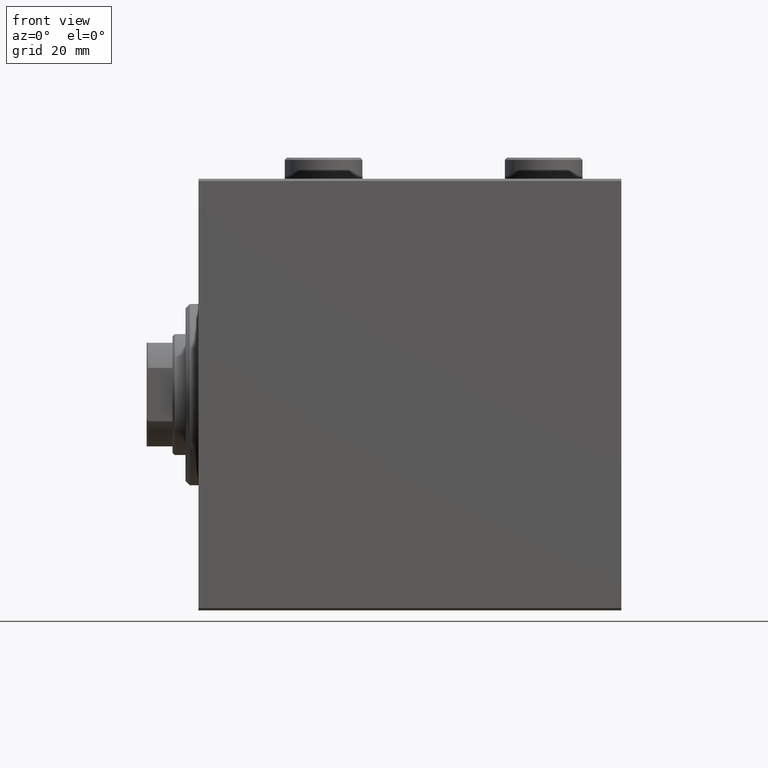
[diagram: clean part render]
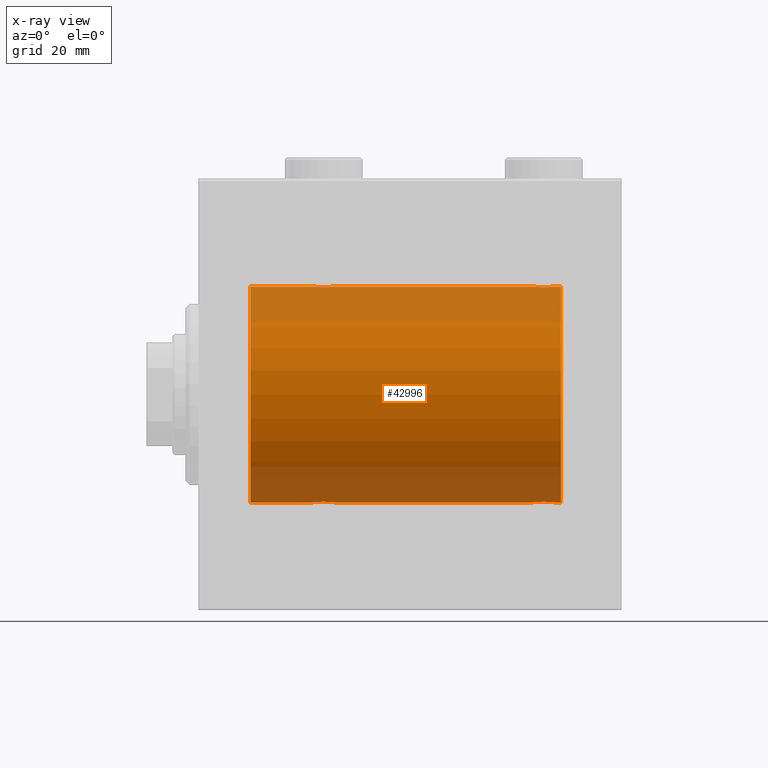
[diagram: x-ray — body ghosted, one internal face saturated and labeled with its STEP entity id]
A machine part, front view, then the same camera in x-ray: the body is ghosted and one INTERNAL B-rep face — a face not visible from any outside direction — is saturated and labeled: STEP entity #42996.
In plain terms, the highlighted cylindrical surface (partial cylindrical patch) has radius 25 mm, axis along (-1, -0, -0).
Its self-contained STEP definition (entity closure, byte-faithful):
#449 = CARTESIAN_POINT ( 'NONE',  ( 77.56650644760256341, -0.6588655613945877398, -24.99312727339970408 ) ) ;
#622 = VECTOR ( 'NONE', #7083, 1000.000000000000000 ) ;
#842 = CARTESIAN_POINT ( 'NONE',  ( 26.57985090779070703, -0.6480119923854241737, 24.99212088949390420 ) ) ;
#1067 = CARTESIAN_POINT ( 'NONE',  ( 28.19211657594193809, -2.371528299825754083, 24.88734287464370709 ) ) ;
#1151 = VERTEX_POINT ( 'NONE', #25082 ) ;
#1298 = CARTESIAN_POINT ( 'NONE',  ( 80.16323589638544433, -2.500125740978196731, 24.87467329022545925 ) ) ;
#1452 = CARTESIAN_POINT ( 'NONE',  ( 31.50000000000000000, -2.695968940278339017E-15, 25.00000000000000000 ) ) ;
#1463 = DIRECTION ( 'NONE',  ( 0.000000000000000000, 0.000000000000000000, 1.000000000000000000 ) ) ;
#1526 = CARTESIAN_POINT ( 'NONE',  ( 78.01250184165604651, -1.525407911884365530, 24.95379469572362297 ) ) ;
#1588 = EDGE_LOOP ( 'NONE', ( #8360, #44702, #42185, #10391, #12978, #42127, #16346, #38599, #25651, #20597, #21940, #6602 ) ) ;
#1703 = CARTESIAN_POINT ( 'NONE',  ( 30.98749815834399257, -1.525407911884362644, -24.95379469572362652 ) ) ;
#1937 = CARTESIAN_POINT ( 'NONE',  ( 26.75393620905934000, -1.109818057797415936, -24.97580694515542987 ) ) ;
#2115 = CARTESIAN_POINT ( 'NONE',  ( 78.11814045851357946, -1.653834020452939146, -24.94550385189584318 ) ) ;
#2122 = AXIS2_PLACEMENT_3D ( 'NONE', #17942, #17719, #38531 ) ;
#2168 = CARTESIAN_POINT ( 'NONE',  ( 27.89276154161589716, -2.247417070759893498, -24.89885693081946272 ) ) ;
#2264 = EDGE_CURVE ( 'NONE', #8431, #44695, #3102, .T. ) ;
#2453 = EDGE_CURVE ( 'NONE', #10804, #15752, #43157, .T. ) ;
#2617 = CARTESIAN_POINT ( 'NONE',  ( 29.32947680114269318, -2.483544361357266972, -24.87635491893501793 ) ) ;
#2791 = CARTESIAN_POINT ( 'NONE',  ( 79.19564339083697746, -2.372734907014171224, -24.88722742718433523 ) ) ;
#3010 = CARTESIAN_POINT ( 'NONE',  ( 81.25383195424505800, -2.169003991399860443, -24.90589728951139037 ) ) ;
#3102 = LINE ( 'NONE', #13051, #31348 ) ;
#3637 = CARTESIAN_POINT ( 'NONE',  ( 26.50000000000000355, -1.940558383798427991E-23, 25.00000000000000000 ) ) ;
#3649 = LINE ( 'NONE', #14710, #26672 ) ;
#4072 = AXIS2_PLACEMENT_3D ( 'NONE', #43984, #19033, #1463 ) ;
#4311 = CARTESIAN_POINT ( 'NONE',  ( 30.10723845838410284, -2.247417070759902380, 24.89885693081946272 ) ) ;
#4537 = CARTESIAN_POINT ( 'NONE',  ( 27.34616663850662377, -1.881857718844722971, 24.92933960374833902 ) ) ;
#4756 = CARTESIAN_POINT ( 'NONE',  ( 79.67052319885733880, -2.483544361357273189, 24.87635491893502149 ) ) ;
#4870 = EDGE_CURVE ( 'NONE', #11720, #44695, #30045, .T. ) ;
#5449 = CARTESIAN_POINT ( 'NONE',  ( 77.62784030591393503, -0.8058335233485520721, 24.98746277938383287 ) ) ;
#5635 = CARTESIAN_POINT ( 'NONE',  ( 27.01461966282905891, -1.528152964861308138, -24.95362559291378801 ) ) ;
#6027 = CARTESIAN_POINT ( 'NONE',  ( 80.16706495178063108, -2.499872792855076575, -24.87469871246082675 ) ) ;
#6307 = CARTESIAN_POINT ( 'NONE',  ( 28.35439333851369526, -2.420689345803757053, -24.88254961038873958 ) ) ;
#6580 = CARTESIAN_POINT ( 'NONE',  ( 81.25084023924057419, -2.170728182476720836, 24.90574631553725027 ) ) ;
#6602 = ORIENTED_EDGE ( 'NONE', *, *, #20023, .F. ) ;
#7031 = DIRECTION ( 'NONE',  ( -1.000000000000000000, -0.000000000000000000, -0.000000000000000000 ) ) ;
#7083 = DIRECTION ( 'NONE',  ( -1.000000000000000000, -0.000000000000000000, -0.000000000000000000 ) ) ;
#7323 = DIRECTION ( 'NONE',  ( -1.000000000000000000, -0.000000000000000000, -0.000000000000000000 ) ) ;
#7373 = DIRECTION ( 'NONE',  ( -1.000000000000000000, -0.000000000000000000, -0.000000000000000000 ) ) ;
#7635 = B_SPLINE_CURVE_WITH_KNOTS ( 'NONE', 3,
 ( #27290, #30980, #41840, #41389, #41609, #37476, #24044, #10158, #34451, #44625, #34675, #3010, #38147, #12961, #17108, #23600, #6027, #9707, #23818, #37919, #2791, #31199, #45075, #24273, #38375, #2115, #21472, #10604, #14077, #449, #17786, #31660 ),
 .UNSPECIFIED., .F., .F.,
 ( 4, 2, 2, 2, 2, 2, 2, 2, 2, 2, 2, 2, 2, 2, 2, 4 ),
 ( 0.007821024441662298085, 0.008309723826317902753, 0.008798423210973509156, 0.009287122595629113825, 0.009775821980284718493, 0.01026452136494032490, 0.01075322074959592956, 0.01124192013425153597, 0.01173061951890714064, 0.01221931890356274530, 0.01270801828821835171, 0.01319671767287395811, 0.01368541705752956104, 0.01417411644218516745, 0.01466281582684077212, 0.01564021459615199880 ),
 .UNSPECIFIED. ) ;
#7917 = EDGE_CURVE ( 'NONE', #21861, #1151, #21133, .T. ) ;
#7929 = CARTESIAN_POINT ( 'NONE',  ( 31.17011290280923674, -1.252049606094335132, -24.96900299967627035 ) ) ;
#8138 = CARTESIAN_POINT ( 'NONE',  ( 26.50000000000000355, -3.314090237927254693E-15, -25.00000000000000000 ) ) ;
#8213 = CARTESIAN_POINT ( 'NONE',  ( 79.35095609830904095, -2.419770561643911133, 24.88263927071751169 ) ) ;
#8218 = CARTESIAN_POINT ( 'NONE',  ( 31.16827641493956591, -1.255214705003184106, 24.96884293994578385 ) ) ;
#8360 = ORIENTED_EDGE ( 'NONE', *, *, #2453, .F. ) ;
#8431 = VERTEX_POINT ( 'NONE', #16608 ) ;
#8444 = CARTESIAN_POINT ( 'NONE',  ( 77.50000000000004263, -0.1631750940176218967, 25.00000000000000355 ) ) ;
#9322 = CARTESIAN_POINT ( 'NONE',  ( 26.50000000000001066, -0.3305063766663772773, -25.00000000000000711 ) ) ;
#9707 = CARTESIAN_POINT ( 'NONE',  ( 79.83676410361458409, -2.500125740978189182, -24.87467329022545215 ) ) ;
#10036 = CARTESIAN_POINT ( 'NONE',  ( 81.65121133559114242, -1.884161199660613351, 24.92916496727982434 ) ) ;
#10101 = CARTESIAN_POINT ( 'NONE',  ( 84.00000000000000000, 3.061616997868382254E-15, -25.00000000000000000 ) ) ;
#10158 = CARTESIAN_POINT ( 'NONE',  ( 81.98749815834398191, -1.525407911884367529, -24.95379469572361586 ) ) ;
#10391 = ORIENTED_EDGE ( 'NONE', *, *, #42990, .T. ) ;
#10604 = CARTESIAN_POINT ( 'NONE',  ( 77.83172358506043054, -1.255214705003180109, -24.96884293994577675 ) ) ;
#10717 = VECTOR ( 'NONE', #7031, 1000.000000000000000 ) ;
#10774 = CARTESIAN_POINT ( 'NONE',  ( 27.88963203491136156, -2.245863995402906266, 24.89899750494197050 ) ) ;
#10804 = VERTEX_POINT ( 'NONE', #10101 ) ;
#11274 = EDGE_CURVE ( 'NONE', #11720, #27269, #28864, .T. ) ;
#11392 = CARTESIAN_POINT ( 'NONE',  ( 31.42014909220929653, -0.6480119923854192887, -24.99212088949391131 ) ) ;
#11685 = CARTESIAN_POINT ( 'NONE',  ( 77.82988709719073483, -1.252049606094335799, 24.96900299967626680 ) ) ;
#11690 = CARTESIAN_POINT ( 'NONE',  ( 28.83293504821940090, -2.499872792855088122, 24.87469871246082320 ) ) ;
#11720 = VERTEX_POINT ( 'NONE', #41787 ) ;
#12010 = CIRCLE ( 'NONE', #26770, 25.00000000000000000 ) ;
#12258 = B_SPLINE_CURVE_WITH_KNOTS ( 'NONE', 3,
 ( #26200, #43062, #32669, #11392, #39608, #40305, #7929, #1703, #18813, #32916, #31034, #26667, #27342, #37301, #33602, #2617, #37977, #16259, #45129, #6307, #37069, #2168, #41223, #13462, #12782, #37527, #5635, #16029, #1937, #20410, #9322, #19736 ),
 .UNSPECIFIED., .F., .F.,
 ( 4, 2, 2, 2, 2, 2, 2, 2, 2, 2, 2, 2, 2, 2, 2, 4 ),
 ( 0.007821024441662303289, 0.008309723826317913162, 0.008798423210973523034, 0.009287122595629127703, 0.009775821980284732371, 0.01026452136494033877, 0.01075322074959594518, 0.01124192013425154985, 0.01173061951890715451, 0.01221931890356276092, 0.01270801828821836559, 0.01319671767287397025, 0.01368541705752957666, 0.01417411644218518132, 0.01466281582684078599, 0.01564021459615200227 ),
 .UNSPECIFIED. ) ;
#12606 = CARTESIAN_POINT ( 'NONE',  ( 78.74616804575498463, -2.169003991399877762, 24.90589728951138682 ) ) ;
#12782 = CARTESIAN_POINT ( 'NONE',  ( 27.34878866440887535, -1.884161199660613351, -24.92916496727982079 ) ) ;
#12830 = CARTESIAN_POINT ( 'NONE',  ( 80.80435660916305096, -2.372734907014176553, 24.88722742718433523 ) ) ;
#12961 = CARTESIAN_POINT ( 'NONE',  ( 80.80788342405803348, -2.371528299825742092, -24.88734287464371064 ) ) ;
#12978 = ORIENTED_EDGE ( 'NONE', *, *, #34564, .T. ) ;
#13051 = CARTESIAN_POINT ( 'NONE',  ( 84.00000000000000000, 0.000000000000000000, 25.00000000000000000 ) ) ;
#13451 = DIRECTION ( 'NONE',  ( 0.000000000000000000, 0.000000000000000000, 1.000000000000000000 ) ) ;
#13462 = CARTESIAN_POINT ( 'NONE',  ( 27.47743225659811017, -1.989585286700241928, -24.92087098724766037 ) ) ;
#13504 = CARTESIAN_POINT ( 'NONE',  ( 82.24606379094068132, -1.109818057797411051, 24.97580694515542277 ) ) ;
#14077 = CARTESIAN_POINT ( 'NONE',  ( 77.75393620905936132, -1.109818057797414381, -24.97580694515541921 ) ) ;
#14293 = EDGE_CURVE ( 'NONE', #10804, #43243, #30971, .T. ) ;
#14469 = CARTESIAN_POINT ( 'NONE',  ( 27.11587617213528745, -1.651251241585107055, 24.94567559498349141 ) ) ;
#14696 = CARTESIAN_POINT ( 'NONE',  ( 27.01250184165601809, -1.525407911884372192, 24.95379469572361941 ) ) ;
#14710 = CARTESIAN_POINT ( 'NONE',  ( 84.00000000000000000, 0.000000000000000000, 25.00000000000000000 ) ) ;
#14919 = CARTESIAN_POINT ( 'NONE',  ( 29.80435660916301899, -2.372734907014179662, 24.88722742718433878 ) ) ;
#15752 = VERTEX_POINT ( 'NONE', #16539 ) ;
#16029 = CARTESIAN_POINT ( 'NONE',  ( 26.83172358506043764, -1.255214705003178555, -24.96884293994578741 ) ) ;
#16259 = CARTESIAN_POINT ( 'NONE',  ( 28.83676410361456632, -2.500125740978190958, -24.87467329022545215 ) ) ;
#16346 = ORIENTED_EDGE ( 'NONE', *, *, #18318, .T. ) ;
#16539 = CARTESIAN_POINT ( 'NONE',  ( 84.00000000000000000, 0.000000000000000000, 25.00000000000000000 ) ) ;
#16608 = CARTESIAN_POINT ( 'NONE',  ( 77.50000000000001421, -1.940203396391078535E-23, 25.00000000000000000 ) ) ;
#16763 = CARTESIAN_POINT ( 'NONE',  ( 82.50000000000005684, -0.3305063766663757230, 25.00000000000000711 ) ) ;
#17108 = CARTESIAN_POINT ( 'NONE',  ( 80.64904390169097326, -2.419770561643902695, -24.88263927071750814 ) ) ;
#17719 = DIRECTION ( 'NONE',  ( -1.000000000000000000, -0.000000000000000000, -0.000000000000000000 ) ) ;
#17786 = CARTESIAN_POINT ( 'NONE',  ( 77.50000000000001421, -0.3305063766663793867, -25.00000000000000711 ) ) ;
#17905 = EDGE_CURVE ( 'NONE', #8431, #38228, #32548, .T. ) ;
#17942 = CARTESIAN_POINT ( 'NONE',  ( 84.00000000000000000, 0.000000000000000000, 0.000000000000000000 ) ) ;
#18318 = EDGE_CURVE ( 'NONE', #1151, #27269, #12010, .T. ) ;
#18634 = CARTESIAN_POINT ( 'NONE',  ( 26.51582159942343608, -0.3254210271412232292, 24.99840249400844883 ) ) ;
#18693 = EDGE_CURVE ( 'NONE', #43243, #40763, #7635, .T. ) ;
#18813 = CARTESIAN_POINT ( 'NONE',  ( 30.88412382786470900, -1.651251241585097951, -24.94567559498349141 ) ) ;
#18865 = CARTESIAN_POINT ( 'NONE',  ( 79.83293504821945419, -2.499872792855085013, 24.87469871246082675 ) ) ;
#19033 = DIRECTION ( 'NONE',  ( -1.000000000000000000, 0.000000000000000000, 0.000000000000000000 ) ) ;
#19736 = CARTESIAN_POINT ( 'NONE',  ( 26.50000000000000355, -3.314090237927254693E-15, -25.00000000000000000 ) ) ;
#20023 = EDGE_CURVE ( 'NONE', #15752, #38228, #3649, .T. ) ;
#20410 = CARTESIAN_POINT ( 'NONE',  ( 26.56650644760253499, -0.6588655613945881839, -24.99312727339971119 ) ) ;
#20448 = DIRECTION ( 'NONE',  ( -1.000000000000000000, -0.000000000000000000, -0.000000000000000000 ) ) ;
#20597 = ORIENTED_EDGE ( 'NONE', *, *, #2264, .F. ) ;
#21133 = LINE ( 'NONE', #41723, #10717 ) ;
#21472 = CARTESIAN_POINT ( 'NONE',  ( 78.01461966282909088, -1.528152964861308138, -24.95362559291378091 ) ) ;
#21630 = CARTESIAN_POINT ( 'NONE',  ( 28.35095609830903740, -2.419770561643915130, 24.88263927071751169 ) ) ;
#21861 = VERTEX_POINT ( 'NONE', #8138 ) ;
#21867 = CARTESIAN_POINT ( 'NONE',  ( 29.64560666148631896, -2.420689345803764159, 24.88254961038873958 ) ) ;
#21940 = ORIENTED_EDGE ( 'NONE', *, *, #17905, .T. ) ;
#23016 = CARTESIAN_POINT ( 'NONE',  ( 77.51582159942344674, -0.3254210271412246169, 24.99840249400844883 ) ) ;
#23478 = CARTESIAN_POINT ( 'NONE',  ( 81.98538033717099438, -1.528152964861309915, 24.95362559291379156 ) ) ;
#23600 = CARTESIAN_POINT ( 'NONE',  ( 80.32947680114270383, -2.483544361357264751, -24.87635491893501438 ) ) ;
#23659 = VERTEX_POINT ( 'NONE', #45575 ) ;
#23697 = CARTESIAN_POINT ( 'NONE',  ( 81.88185954148649159, -1.653834020452933817, 24.94550385189585029 ) ) ;
#23818 = CARTESIAN_POINT ( 'NONE',  ( 79.67403429960539540, -2.484007091859756766, -24.87630842367762796 ) ) ;
#23970 = CARTESIAN_POINT ( 'NONE',  ( 84.00000000000000000, 3.061616997868382254E-15, -25.00000000000000000 ) ) ;
#24044 = CARTESIAN_POINT ( 'NONE',  ( 82.17011290280929359, -1.252049606094341572, -24.96900299967627745 ) ) ;
#24149 = CARTESIAN_POINT ( 'NONE',  ( 82.50000000000001421, 2.858952873890094713E-15, 25.00000000000000000 ) ) ;
#24273 = CARTESIAN_POINT ( 'NONE',  ( 78.47743225659816346, -1.989585286700248590, -24.92087098724766747 ) ) ;
#24424 = FACE_OUTER_BOUND ( 'NONE', #1588, .T. ) ;
#24887 = CARTESIAN_POINT ( 'NONE',  ( 30.98538033717095175, -1.528152964861314800, 24.95362559291378801 ) ) ;
#25082 = CARTESIAN_POINT ( 'NONE',  ( 11.99999999999999645, 3.061616997868382254E-15, -25.00000000000000000 ) ) ;
#25111 = CARTESIAN_POINT ( 'NONE',  ( 29.32596570039460104, -2.484007091859769645, 24.87630842367763506 ) ) ;
#25330 = CARTESIAN_POINT ( 'NONE',  ( 28.67052319885732103, -2.483544361357276742, 24.87635491893501438 ) ) ;
#25570 = CARTESIAN_POINT ( 'NONE',  ( 26.75239748980448695, -1.106703319666887397, 24.97594585958023572 ) ) ;
#25651 = ORIENTED_EDGE ( 'NONE', *, *, #4870, .T. ) ;
#26200 = CARTESIAN_POINT ( 'NONE',  ( 31.50000000000000000, 3.061616978460191625E-15, -25.00000000000000000 ) ) ;
#26667 = CARTESIAN_POINT ( 'NONE',  ( 30.25383195424503668, -2.169003991399866660, -24.90589728951138682 ) ) ;
#26672 = VECTOR ( 'NONE', #7323, 1000.000000000000000 ) ;
#26711 = CARTESIAN_POINT ( 'NONE',  ( 78.88963203491135801, -2.245863995402903601, 24.89899750494197050 ) ) ;
#26716 = CARTESIAN_POINT ( 'NONE',  ( 31.43349355239747567, -0.6588655613945894052, 24.99312727339970053 ) ) ;
#26770 = AXIS2_PLACEMENT_3D ( 'NONE', #33828, #45120, #13451 ) ;
#27269 = VERTEX_POINT ( 'NONE', #35993 ) ;
#27290 = CARTESIAN_POINT ( 'NONE',  ( 82.50000000000001421, 3.061616978466502512E-15, -25.00000000000000000 ) ) ;
#27342 = CARTESIAN_POINT ( 'NONE',  ( 30.11036796508863844, -2.245863995402896496, -24.89899750494197406 ) ) ;
#27606 = CARTESIAN_POINT ( 'NONE',  ( 82.16827641493958367, -1.255214705003178777, 24.96884293994578030 ) ) ;
#27989 = CARTESIAN_POINT ( 'NONE',  ( 77.50000000000001421, -3.163294216715586498E-15, -25.00000000000000000 ) ) ;
#28570 = CARTESIAN_POINT ( 'NONE',  ( 27.47463817756919369, -1.987446652080268938, 24.92104239223420592 ) ) ;
#28864 = LINE ( 'NONE', #38598, #35183 ) ;
#29255 = CARTESIAN_POINT ( 'NONE',  ( 79.19211657594196652, -2.371528299825750974, 24.88734287464371420 ) ) ;
#29260 = CARTESIAN_POINT ( 'NONE',  ( 29.16323589638543368, -2.500125740978199840, 24.87467329022545570 ) ) ;
#29950 = CARTESIAN_POINT ( 'NONE',  ( 31.49999999999998579, -0.3305063766663723368, 25.00000000000000000 ) ) ;
#30045 = B_SPLINE_CURVE_WITH_KNOTS ( 'NONE', 3,
 ( #3637, #42446, #18634, #842, #32035, #25570, #35972, #14696, #14469, #4537, #28570, #39668, #10774, #1067, #21630, #25330, #11690, #29260, #25111, #21867, #14919, #4311, #39209, #32502, #43362, #39900, #24887, #8218, #31813, #26716, #29950, #40814 ),
 .UNSPECIFIED., .F., .F.,
 ( 4, 2, 2, 2, 2, 2, 2, 2, 2, 2, 2, 2, 2, 2, 2, 4 ),
 ( 0.007821024441662254717, 0.008309723826317859385, 0.008798423210973465788, 0.009287122595629072191, 0.009775821980284676860, 0.01026452136494028153, 0.01075322074959588793, 0.01124192013425149433, 0.01173061951890709900, 0.01221931890356270367, 0.01270801828821831007, 0.01319671767287391648, 0.01368541705752952115, 0.01417411644218512581, 0.01466281582684073222, 0.01564021459615194329 ),
 .UNSPECIFIED. ) ;
#30180 = CARTESIAN_POINT ( 'NONE',  ( 77.75239748980452248, -1.106703319666889396, 24.97594585958023572 ) ) ;
#30630 = CARTESIAN_POINT ( 'NONE',  ( 80.32596570039464723, -2.484007091859765204, 24.87630842367763861 ) ) ;
#30971 = LINE ( 'NONE', #37910, #41169 ) ;
#30980 = CARTESIAN_POINT ( 'NONE',  ( 82.50000000000000000, -0.1631750940176171505, -25.00000000000000355 ) ) ;
#31034 = CARTESIAN_POINT ( 'NONE',  ( 30.52536182243080276, -1.987446652080258724, -24.92104239223419881 ) ) ;
#31199 = CARTESIAN_POINT ( 'NONE',  ( 78.89276154161592558, -2.247417070759896607, -24.89885693081946272 ) ) ;
#31348 = VECTOR ( 'NONE', #20448, 1000.000000000000000 ) ;
#31420 = DIRECTION ( 'NONE',  ( -1.000000000000000000, -0.000000000000000000, -0.000000000000000000 ) ) ;
#31660 = CARTESIAN_POINT ( 'NONE',  ( 77.50000000000001421, -3.163294216715586498E-15, -25.00000000000000000 ) ) ;
#31813 = CARTESIAN_POINT ( 'NONE',  ( 31.24606379094067066, -1.109818057797418822, 24.97580694515541921 ) ) ;
#32035 = CARTESIAN_POINT ( 'NONE',  ( 26.62784030591392437, -0.8058335233485491855, 24.98746277938383287 ) ) ;
#32502 = CARTESIAN_POINT ( 'NONE',  ( 30.52256774340189693, -1.989585286700249700, 24.92087098724766747 ) ) ;
#32548 = B_SPLINE_CURVE_WITH_KNOTS ( 'NONE', 3,
 ( #33199, #8444, #23016, #37113, #5449, #30180, #11685, #1526, #44282, #32968, #39895, #12606, #26711, #29255, #8213, #4756, #18865, #1298, #30630, #41485, #12830, #41716, #6580, #38253, #10036, #23697, #23478, #27606, #13504, #38022, #16763, #24149 ),
 .UNSPECIFIED., .F., .F.,
 ( 4, 2, 2, 2, 2, 2, 2, 2, 2, 2, 2, 2, 2, 2, 2, 4 ),
 ( 0.007821024441662285942, 0.008309723826317894080, 0.008798423210973503952, 0.009287122595629112090, 0.009775821980284721963, 0.01026452136494033010, 0.01075322074959593997, 0.01124192013425154811, 0.01173061951890715798, 0.01221931890356276612, 0.01270801828821837426, 0.01319671767287398240, 0.01368541705752959400, 0.01417411644218520214, 0.01466281582684081028, 0.01564021459615201268 ),
 .UNSPECIFIED. ) ;
#32669 = CARTESIAN_POINT ( 'NONE',  ( 31.48417840057656036, -0.3254210271412191213, -24.99840249400844172 ) ) ;
#32916 = CARTESIAN_POINT ( 'NONE',  ( 30.65383336149338689, -1.881857718844712757, -24.92933960374833902 ) ) ;
#32968 = CARTESIAN_POINT ( 'NONE',  ( 78.34616663850664509, -1.881857718844724303, 24.92933960374833902 ) ) ;
#33199 = CARTESIAN_POINT ( 'NONE',  ( 77.50000000000001421, -1.940203396391078535E-23, 25.00000000000000000 ) ) ;
#33602 = CARTESIAN_POINT ( 'NONE',  ( 29.64904390169096615, -2.419770561643904472, -24.88263927071750459 ) ) ;
#33828 = CARTESIAN_POINT ( 'NONE',  ( 11.99999999999999645, 0.000000000000000000, 0.000000000000000000 ) ) ;
#34451 = CARTESIAN_POINT ( 'NONE',  ( 81.88412382786472676, -1.651251241585101059, -24.94567559498348430 ) ) ;
#34564 = EDGE_CURVE ( 'NONE', #23659, #21861, #12258, .T. ) ;
#34675 = CARTESIAN_POINT ( 'NONE',  ( 81.52536182243082408, -1.987446652080251619, -24.92104239223420592 ) ) ;
#35183 = VECTOR ( 'NONE', #7373, 1000.000000000000000 ) ;
#35511 = CYLINDRICAL_SURFACE ( 'NONE', #2122, 25.00000000000000000 ) ;
#35972 = CARTESIAN_POINT ( 'NONE',  ( 26.82988709719075970, -1.252049606094344236, 24.96900299967627390 ) ) ;
#35993 = CARTESIAN_POINT ( 'NONE',  ( 11.99999999999999645, 0.000000000000000000, 25.00000000000000000 ) ) ;
#36593 = CARTESIAN_POINT ( 'NONE',  ( 82.50000000000001421, 2.858952873890094713E-15, 25.00000000000000000 ) ) ;
#37069 = CARTESIAN_POINT ( 'NONE',  ( 28.19564339083698457, -2.372734907014170780, -24.88722742718433878 ) ) ;
#37113 = CARTESIAN_POINT ( 'NONE',  ( 77.57985090779074255, -0.6480119923854255060, 24.99212088949390775 ) ) ;
#37301 = CARTESIAN_POINT ( 'NONE',  ( 29.80788342405805125, -2.371528299825743424, -24.88734287464369999 ) ) ;
#37476 = CARTESIAN_POINT ( 'NONE',  ( 82.24760251019554858, -1.106703319666881180, -24.97594585958024282 ) ) ;
#37527 = CARTESIAN_POINT ( 'NONE',  ( 27.11814045851354393, -1.653834020452936260, -24.94550385189585029 ) ) ;
#37910 = CARTESIAN_POINT ( 'NONE',  ( 84.00000000000000000, 3.061616997868382254E-15, -25.00000000000000000 ) ) ;
#37919 = CARTESIAN_POINT ( 'NONE',  ( 79.35439333851368815, -2.420689345803750836, -24.88254961038873958 ) ) ;
#37977 = CARTESIAN_POINT ( 'NONE',  ( 29.16706495178061331, -2.499872792855078352, -24.87469871246083031 ) ) ;
#38022 = CARTESIAN_POINT ( 'NONE',  ( 82.43349355239749343, -0.6588655613945808565, 24.99312727339970053 ) ) ;
#38147 = CARTESIAN_POINT ( 'NONE',  ( 81.11036796508865621, -2.245863995402895164, -24.89899750494197406 ) ) ;
#38228 = VERTEX_POINT ( 'NONE', #36593 ) ;
#38253 = CARTESIAN_POINT ( 'NONE',  ( 81.52256774340189338, -1.989585286700245925, 24.92087098724765681 ) ) ;
#38375 = CARTESIAN_POINT ( 'NONE',  ( 78.34878866440891443, -1.884161199660618013, -24.92916496727982789 ) ) ;
#38531 = DIRECTION ( 'NONE',  ( 0.000000000000000000, 0.000000000000000000, 1.000000000000000000 ) ) ;
#38598 = CARTESIAN_POINT ( 'NONE',  ( 84.00000000000000000, 0.000000000000000000, 25.00000000000000000 ) ) ;
#38599 = ORIENTED_EDGE ( 'NONE', *, *, #11274, .F. ) ;
#39209 = CARTESIAN_POINT ( 'NONE',  ( 30.25084023924055998, -2.170728182476724388, 24.90574631553725027 ) ) ;
#39608 = CARTESIAN_POINT ( 'NONE',  ( 31.37215969408607563, -0.8058335233485421911, -24.98746277938383287 ) ) ;
#39668 = CARTESIAN_POINT ( 'NONE',  ( 27.74616804575498108, -2.169003991399877318, 24.90589728951138326 ) ) ;
#39895 = CARTESIAN_POINT ( 'NONE',  ( 78.47463817756926119, -1.987446652080270271, 24.92104239223421303 ) ) ;
#39900 = CARTESIAN_POINT ( 'NONE',  ( 30.88185954148645962, -1.653834020452941589, 24.94550385189585029 ) ) ;
#40305 = CARTESIAN_POINT ( 'NONE',  ( 31.24760251019550950, -1.106703319666878960, -24.97594585958023217 ) ) ;
#40763 = VERTEX_POINT ( 'NONE', #27989 ) ;
#40814 = CARTESIAN_POINT ( 'NONE',  ( 31.50000000000000000, -2.695968940278339017E-15, 25.00000000000000000 ) ) ;
#41169 = VECTOR ( 'NONE', #31420, 1000.000000000000000 ) ;
#41223 = CARTESIAN_POINT ( 'NONE',  ( 27.74915976075945068, -2.170728182476715951, -24.90574631553724672 ) ) ;
#41389 = CARTESIAN_POINT ( 'NONE',  ( 82.42014909220930008, -0.6480119923854186226, -24.99212088949390775 ) ) ;
#41485 = CARTESIAN_POINT ( 'NONE',  ( 80.64560666148635448, -2.420689345803758830, 24.88254961038874313 ) ) ;
#41609 = CARTESIAN_POINT ( 'NONE',  ( 82.37215969408609340, -0.8058335233485441895, -24.98746277938383287 ) ) ;
#41716 = CARTESIAN_POINT ( 'NONE',  ( 81.10723845838413126, -2.247417070759898383, 24.89885693081947338 ) ) ;
#41723 = CARTESIAN_POINT ( 'NONE',  ( 84.00000000000000000, 3.061616997868382254E-15, -25.00000000000000000 ) ) ;
#41787 = CARTESIAN_POINT ( 'NONE',  ( 26.50000000000000355, -1.940558383798427991E-23, 25.00000000000000000 ) ) ;
#41840 = CARTESIAN_POINT ( 'NONE',  ( 82.48417840057659589, -0.3254210271412191768, -24.99840249400844883 ) ) ;
#41995 = LINE ( 'NONE', #23970, #622 ) ;
#42127 = ORIENTED_EDGE ( 'NONE', *, *, #7917, .T. ) ;
#42185 = ORIENTED_EDGE ( 'NONE', *, *, #18693, .T. ) ;
#42446 = CARTESIAN_POINT ( 'NONE',  ( 26.50000000000000711, -0.1631750940176214526, 25.00000000000000711 ) ) ;
#42990 = EDGE_CURVE ( 'NONE', #40763, #23659, #41995, .T. ) ;
#42996 = ADVANCED_FACE ( 'NONE', ( #24424 ), #35511, .F. ) ;
#43062 = CARTESIAN_POINT ( 'NONE',  ( 31.49999999999999289, -0.1631750940176174836, -25.00000000000000711 ) ) ;
#43157 = CIRCLE ( 'NONE', #4072, 25.00000000000000000 ) ;
#43243 = VERTEX_POINT ( 'NONE', #44973 ) ;
#43362 = CARTESIAN_POINT ( 'NONE',  ( 30.65121133559112820, -1.884161199660620900, 24.92916496727982434 ) ) ;
#43984 = CARTESIAN_POINT ( 'NONE',  ( 84.00000000000000000, 0.000000000000000000, 0.000000000000000000 ) ) ;
#44282 = CARTESIAN_POINT ( 'NONE',  ( 78.11587617213530166, -1.651251241585109275, 24.94567559498348785 ) ) ;
#44625 = CARTESIAN_POINT ( 'NONE',  ( 81.65383336149341176, -1.881857718844715421, -24.92933960374833546 ) ) ;
#44695 = VERTEX_POINT ( 'NONE', #1452 ) ;
#44702 = ORIENTED_EDGE ( 'NONE', *, *, #14293, .T. ) ;
#44973 = CARTESIAN_POINT ( 'NONE',  ( 82.50000000000001421, 3.061616978466502512E-15, -25.00000000000000000 ) ) ;
#45075 = CARTESIAN_POINT ( 'NONE',  ( 78.74915976075949686, -2.170728182476720391, -24.90574631553725027 ) ) ;
#45120 = DIRECTION ( 'NONE',  ( -1.000000000000000000, 0.000000000000000000, 0.000000000000000000 ) ) ;
#45129 = CARTESIAN_POINT ( 'NONE',  ( 28.67403429960539540, -2.484007091859760319, -24.87630842367762440 ) ) ;
#45575 = CARTESIAN_POINT ( 'NONE',  ( 31.50000000000000000, 3.061616978460191625E-15, -25.00000000000000000 ) ) ;